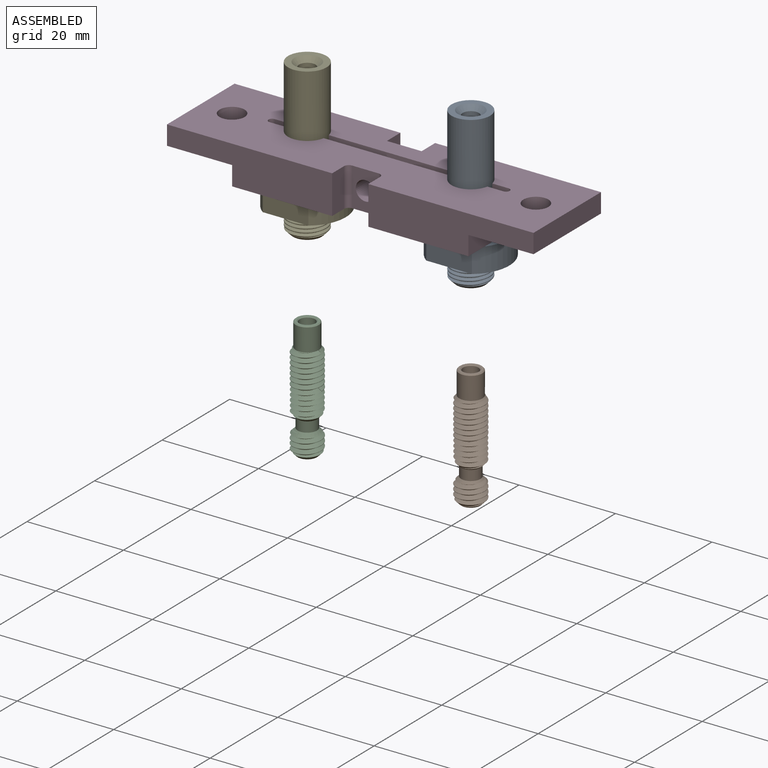
[diagram: assembled view]
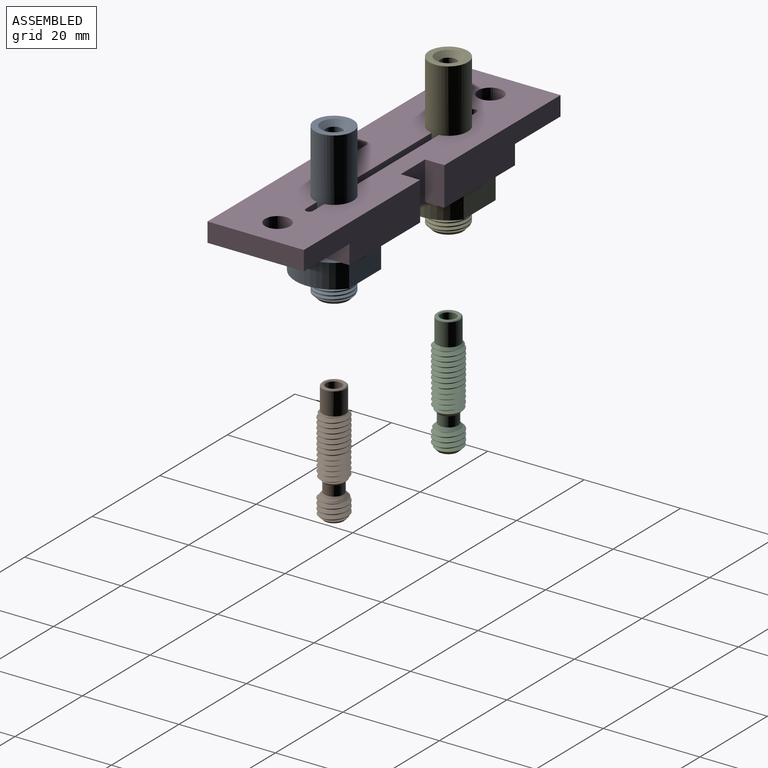
[diagram: assembled view, second angle]
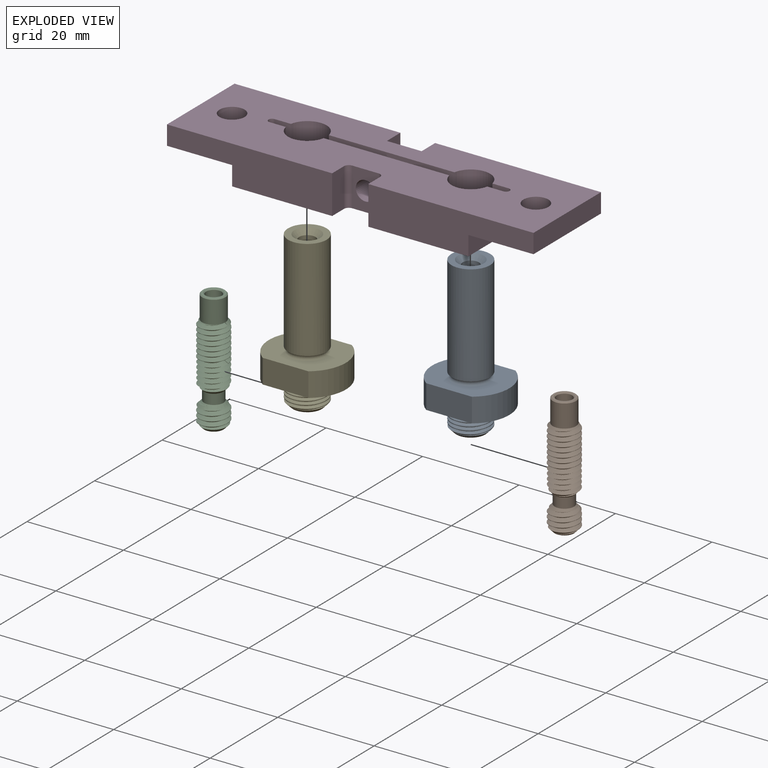
[diagram: exploded view]
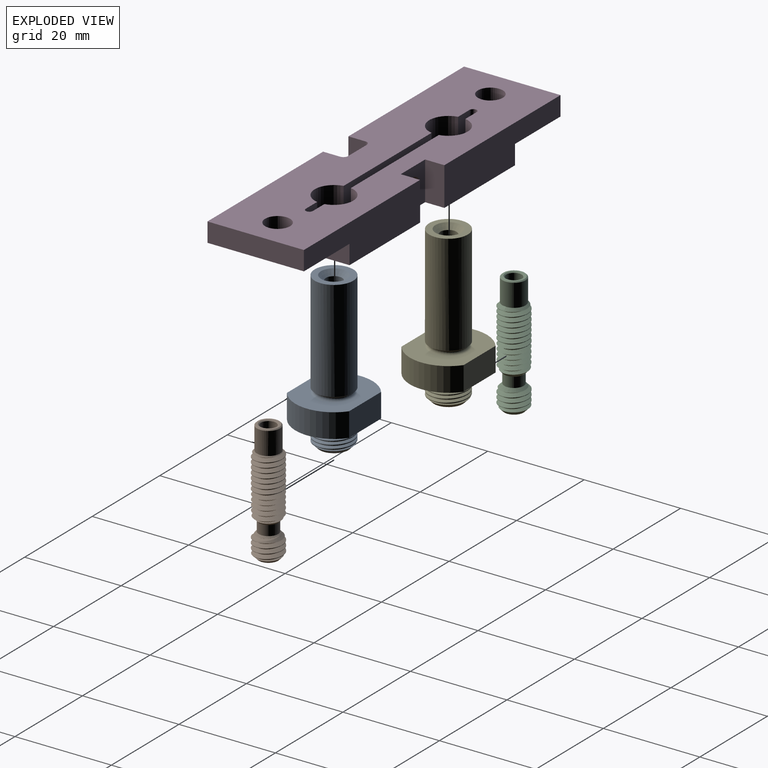
[diagram: exploded view, second angle]
ASSEMBLY  parts=5 mates=2
PART A: 19 faces, bbox 16x12.9x32 mm
  f0: plane 16x12.9mm, normal (0,0,1), area 130.8mm2, adj f3,f4,f6,f7,f9
  f1: cylinder r=1.7mm len=31mm, axis (0,0,-1), area 331.1mm2, adj f10,f12
  f2: plane 16x12.9mm, normal (0,0,-1), area 152.8mm2, adj f3,f4,f6,f7,f14
  f3: cylinder r=8mm len=12.9mm, axis (0,0,-1), area 75mm2, adj f0,f2,f6,f7
  f4: cylinder r=8mm len=12.9mm, axis (0,0,-1), area 75mm2, adj f0,f2,f6,f7
  f5: plane 8x8mm, normal (0,0,1), area 27.4mm2, adj f8,f10
  f6: plane 9.47x5mm, normal (0,-1,0), area 47.3mm2, adj f0,f2,f3,f4
  f7: plane 9.47x5mm, normal (0,1,0), area 47.3mm2, adj f0,f2,f3,f4
  f8: cylinder r=4mm len=21mm, axis (0,0,1), area 527.8mm2, adj f5,f9
  f9: torus R=4mm, axis (0,0,-1), area 36.3mm2, adj f0,f8
  f10: cone r=2.7mm half-angle=45deg, axis (0,0,1), area 19.5mm2, adj f1,f5
  f11: cylinder r=4mm len=8mm, axis (0,0,1), area 14.1mm2, adj f13,f16,f17,f18
  f12: plane 6x6mm, normal (0,0,-1), area 19.2mm2, adj f1,f18
  f13: cone r=3mm half-angle=45deg, axis (0,0,-1), area 24.9mm2, adj f11,f14,f15,f16,f17
  f14: cylinder r=3mm len=6mm, axis (0,0,-1), area 9.4mm2, adj f2,f13
  f15: plane 0.21x0.18mm, normal (-0.87,0.5,0), area 0mm2, adj f13,f16,f17
  f16: bspline ~9.24x8mm, area 54mm2, adj f11,f13,f15,f17,f18
  f17: bspline ~9.24x8mm, area 53.8mm2, adj f11,f13,f15,f16,f18
  f18: cone r=4mm half-angle=45deg, axis (0,0,1), area 24.5mm2, adj f11,f12,f16,f17
PART B: 23 faces, bbox 6x6.9x25.5 mm
  f0: cylinder r=2.4mm len=4.8mm, axis (0,0,1), area 70.9mm2, adj f11,f12,f13,f22
  f1: cylinder r=3mm len=7mm, axis (0,0,1), area 13.5mm2, adj f11,f13,f14,f17
  f2: cylinder r=3mm len=6mm, axis (0,0,1), area 4.2mm2, adj f7,f9,f18,f19
  f3: cylinder r=1.6mm len=24.7mm, axis (0,0,1), area 248.3mm2, adj f20,f21
  f4: plane 4.4x4.4mm, normal (0,0,1), area 5mm2, adj f21,f22
  f5: cylinder r=2mm len=4mm, axis (0,0,1), area 26.4mm2, adj f8,f10
  f6: plane 4x4mm, normal (0,0,-1), area 2.4mm2, adj f7,f20
  f7: cone r=3mm half-angle=45deg, axis (0,0,1), area 13.2mm2, adj f2,f6,f18,f19
  f8: cone r=2mm half-angle=45deg, axis (0,0,-1), area 13.1mm2, adj f5,f9,f18,f19
  f9: cone r=2mm half-angle=45deg, axis (0,0,-1), area 0.2mm2, adj f2,f8,f18
  f10: cone r=3mm half-angle=45deg, axis (0,0,1), area 11.5mm2, adj f5,f13,f14,f15,f16
  f11: cone r=2mm half-angle=45deg, axis (0,0,-1), area 6.7mm2, adj f0,f1,f12,f13,f14
  f12: plane 0.62x0.47mm, normal (0,1,0), area 0.1mm2, adj f0,f11,f13,f14
  f13: bspline ~13.63x6.93mm, area 182.7mm2, adj f0,f1,f10,f11,f12,f14,f16,f17
  f14: bspline ~13.46x6.93mm, area 114.4mm2, adj f1,f10,f11,f12,f13,f15,f17
  f15: bspline ~6.93x6.46mm, area 8.1mm2, adj f10,f14,f16,f17
  f16: bspline ~6.93x6.46mm, area 74.7mm2, adj f10,f13,f15,f17
  f17: plane 0.8x0.5mm, normal (0,1,0), area 0.1mm2, adj f1,f13,f14,f15,f16
  f18: bspline ~6.93x6mm, area 56.9mm2, adj f2,f7,f8,f9,f19
  f19: bspline ~6.93x6mm, area 56.8mm2, adj f2,f7,f8,f18
  f20: cone r=1.8mm half-angle=45deg, axis (0,0,-1), area 3mm2, adj f3,f6
  f21: cone r=1.6mm half-angle=45deg, axis (0,0,1), area 3mm2, adj f3,f4
  f22: cone r=2.2mm half-angle=45deg, axis (0,0,-1), area 4.1mm2, adj f0,f4
PART C: same geometry as B
PART D: 39 faces, bbox 76x20x8 mm
  f0: cylinder r=4mm len=8mm, axis (0,0,-1), area 88.5mm2, adj f1,f15,f16,f17
  f1: plane 26.04x8mm, normal (0,1,0), area 195.8mm2, adj f0,f2,f16,f17,f18
  f2: cylinder r=4mm len=8mm, axis (0,0,-1), area 88.5mm2, adj f1,f3,f16,f17
  f3: plane 8x3.37mm, normal (0,1,0), area 27mm2, adj f2,f4,f16,f17
  f4: cylinder r=0.75mm len=8mm, axis (0,0,-1), area 11.5mm2, adj f3,f5,f16,f17,f27,f28,f31,f37
  f5: plane 10.79x4mm, normal (-1,0,0), area 43.2mm2, adj f4,f6,f16,f37
  f6: plane 34.25x8mm, normal (0,-1,0), area 220mm2, adj f5,f7,f16,f17,f35,f37
  f7: plane 8x3.5mm, normal (1,0,0), area 28mm2, adj f6,f8,f16,f17
  f8: cylinder r=1mm len=8mm, axis (0,0,-1), area 12.6mm2, adj f7,f9,f16,f17
  f9: plane 8x5.5mm, normal (0,-1,0), area 31.4mm2, adj f8,f10,f16,f17,f18
  f10: cylinder r=1mm len=8mm, axis (0,0,-1), area 12.6mm2, adj f9,f11,f16,f17
  f11: plane 8x3.5mm, normal (-1,0,0), area 28mm2, adj f10,f12,f16,f17
  f12: plane 34.25x8mm, normal (0,-1,0), area 220mm2, adj f11,f13,f16,f17,f33,f34
  f13: plane 10.79x4mm, normal (1,0,0), area 43.2mm2, adj f12,f14,f16,f34
  f14: cylinder r=0.75mm len=8mm, axis (0,0,-1), area 11.5mm2, adj f13,f15,f16,f17,f20,f21,f31,f34
  f15: plane 8x3.37mm, normal (0,1,0), area 27mm2, adj f0,f14,f16,f17
  f16: plane 49x10.79mm, normal (0,0,1), area 455.1mm2, adj f0,f1,f2,f3,f4,f5,f6,f7
  f17: plane 76x20mm, normal (0,0,-1), area 1264.2mm2, adj f0,f1,f2,f3,f4,f6,f7,f8
  f18: cylinder r=2mm len=6.25mm, axis (0,-1,0), area 78.5mm2, adj f1,f9
  f19: cylinder r=4mm len=8mm, axis (0,0,-1), area 88.5mm2, adj f17,f20,f30,f31
  f20: plane 8x3.37mm, normal (0,-1,0), area 27mm2, adj f14,f17,f19,f31
  f21: plane 7.79x4mm, normal (1,0,0), area 31.2mm2, adj f14,f22,f31,f34
  f22: plane 34.4x8mm, normal (0,1,0), area 221.2mm2, adj f17,f21,f23,f31,f33,f34
  f23: plane 8x4mm, normal (-1,0,0), area 32mm2, adj f17,f22,f24,f31
  f24: plane 8x7.2mm, normal (0,1,0), area 45mm2, adj f17,f23,f25,f31,f38
  f25: plane 8x4mm, normal (1,0,0), area 32mm2, adj f17,f24,f26,f31
  f26: plane 34.4x8mm, normal (0,1,0), area 221.2mm2, adj f17,f25,f27,f31,f35,f37
  f27: plane 7.79x4mm, normal (-1,0,0), area 31.2mm2, adj f4,f26,f31,f37
  f28: plane 8x3.37mm, normal (0,-1,0), area 27mm2, adj f4,f17,f29,f31
  f29: cylinder r=4mm len=8mm, axis (0,0,-1), area 88.5mm2, adj f17,f28,f30,f31
  f30: plane 26.04x8mm, normal (0,-1,0), area 195.8mm2, adj f17,f19,f29,f31,f38
  f31: plane 49x7.79mm, normal (0,0,1), area 312.6mm2, adj f4,f14,f19,f20,f21,f22,f23,f24
  f32: cylinder r=2.6mm len=5.2mm, axis (0,0,-1), area 65.3mm2, adj f17,f34
  f33: plane 20x4mm, normal (1,0,0), area 80mm2, adj f12,f17,f22,f34
  f34: plane 20x13.5mm, normal (0,0,1), area 248.2mm2, adj f12,f13,f14,f21,f22,f32,f33
  f35: plane 20x4mm, normal (-1,0,0), area 80mm2, adj f6,f17,f26,f37
  f36: cylinder r=2.6mm len=5.2mm, axis (0,0,-1), area 65.3mm2, adj f17,f37
  f37: plane 20x13.5mm, normal (0,0,1), area 248.2mm2, adj f4,f5,f6,f26,f27,f35,f36
  f38: cylinder r=2mm len=4mm, axis (0,-1,0), area 47.1mm2, adj f24,f30
PART E: same geometry as A
PLACE A rot(axis=(0,0,-1),180deg) t=(-35.08,21.6,181.59)mm
PLACE B t=(-35.08,21.6,121.99)mm
PLACE C rot(axis=(0,0,1),180deg) t=(-68.98,21.6,121.99)mm
PLACE D rot(axis=(0,1,0),180deg) t=(-52.03,10.1,182.59)mm
PLACE E rot(axis=(0,0,-1),180deg) t=(-68.98,21.6,181.59)mm
MATE cylindrical E.f9 <-> D.f0  axis (0,0,1) through (-68.98,21.6,174.59)mm
MATE cylindrical A.f9 <-> D.f2  axis (0,0,1) through (-35.08,21.6,174.59)mm
